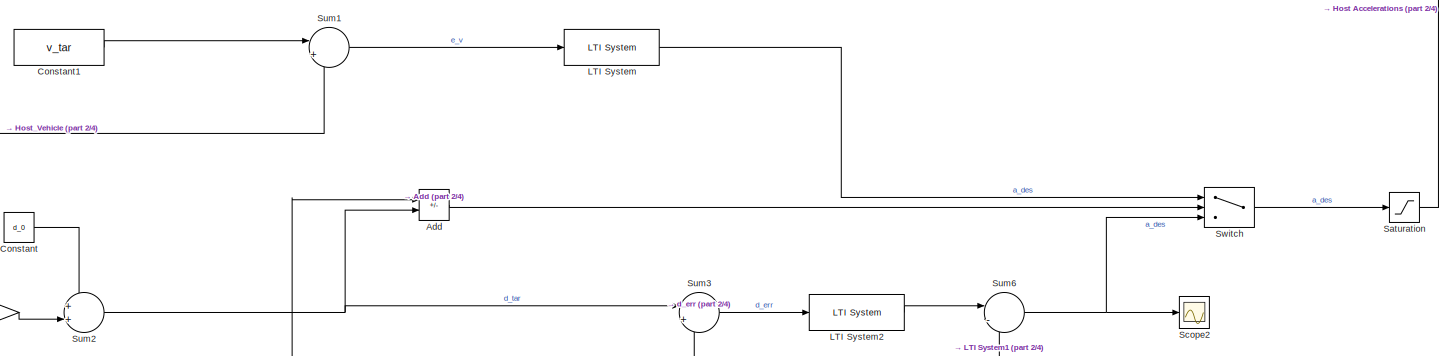
[diagram: root canvas - part 1/4, top center region]
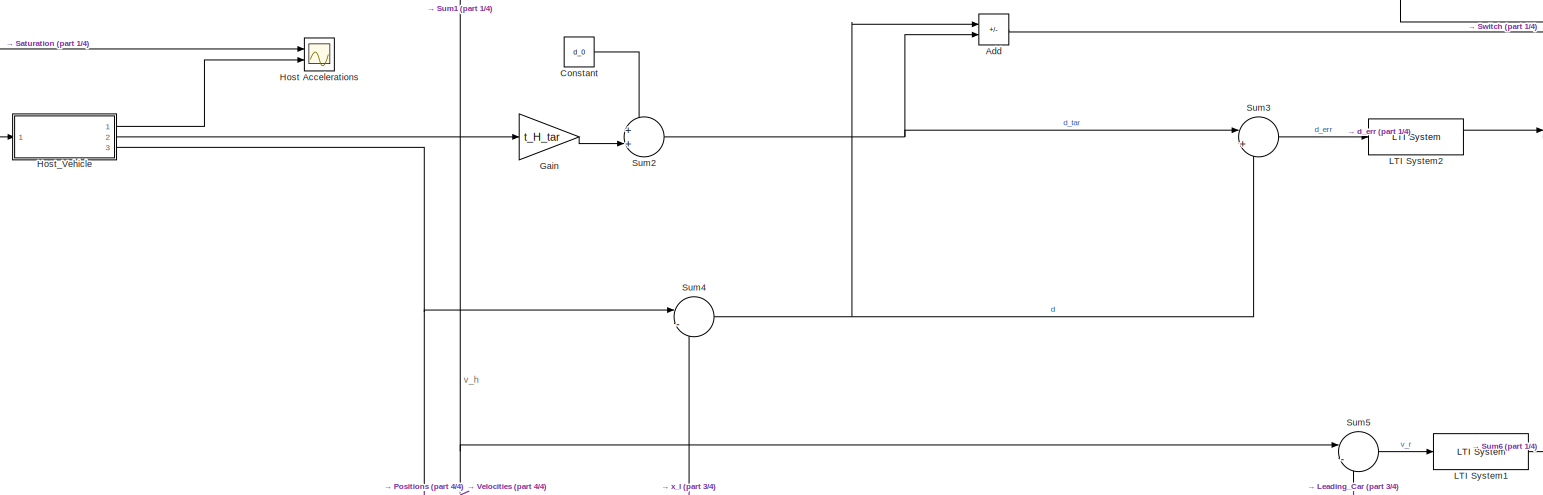
[diagram: root canvas - part 2/4, central region]
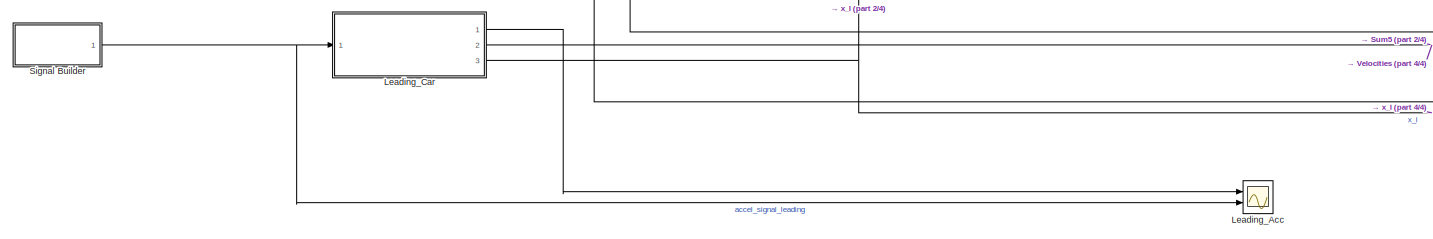
[diagram: root canvas - part 3/4, bottom left region]
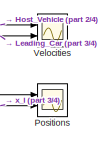
[diagram: root canvas - part 4/4, bottom right region]
MODEL slx_c0095744a17e
KIND model
CONFIG AbsTol = auto
CONFIG EnableMultiTasking = off
CONFIG FixedStep = auto
CONFIG MaxStep = auto
CONFIG MinStep = auto
CONFIG RelTol = 1e-12
CONFIG SampleTimeConstraint = Unconstrained
CONFIG Solver = VariableStepAuto
CONFIG SolverName = VariableStepAuto
CONFIG StartTime = 0.0
CONFIG StopTime = 70
WORKSPACE source: MAT-file member
WORKSPACE d_tar = 20
BLOCK [Sum] Add
  IconShape = rectangular
  Inputs = +-
  Ports = [2, 1]
BLOCK [Constant] Constant
  Value = d_0
BLOCK [Constant] Constant1
  Value = v_tar
BLOCK [Gain] Gain
  Gain = t_H_tar
BLOCK [Scope] Host Accelerations
  Floating = off
  NumInputPorts = 2
  Ports = [2]
  ScopeSpecificationString = Simulink.scopes.TimeScopeBlockCfg('CurrentConfiguration', extmgr.ConfigurationSet(extmgr.Configuration('Core','General UI',true),extmgr.Configuration('Core','Source UI',true),extmgr.Configuration('Sources','WiredSimulink',true,'DataLoggingVariableName','ScopeData8'),extmgr.Configuration('Visuals','Time Domain',true,'SerializedDisplays',{struct('MinYLimReal','-15.59139','MaxYLimReal','-7.22218','YL...<+1370ch>
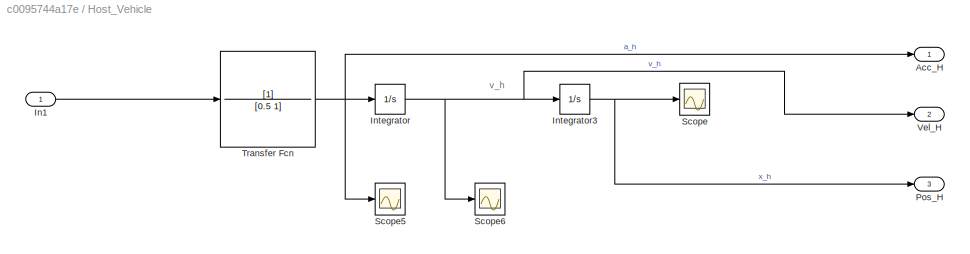
BLOCK [SubSystem] Host_Vehicle
  Ports = [1, 3]
  RequestExecContextInheritance = off
BLOCK [Outport] Host_Vehicle/Acc_H
BLOCK [Inport] Host_Vehicle/In1
BLOCK [Integrator] Host_Vehicle/Integrator
  InitialCondition = v_H0
  Ports = [1, 1]
BLOCK [Integrator] Host_Vehicle/Integrator3
  InitialCondition = x_H0
  Ports = [1, 1]
BLOCK [Outport] Host_Vehicle/Pos_H
  Port = 3
BLOCK [Scope] Host_Vehicle/Scope
  Floating = off
  NumInputPorts = 1
  Ports = [1]
  ScopeSpecificationString = Simulink.scopes.TimeScopeBlockCfg('CurrentConfiguration', extmgr.ConfigurationSet(extmgr.Configuration('Core','General UI',true),extmgr.Configuration('Core','Source UI',true),extmgr.Configuration('Sources','WiredSimulink',true,'DataLoggingVariableName','ScopeData5'),extmgr.Configuration('Visuals','Time Domain',true,'SerializedDisplays',{struct('MinYLimReal','-157.07716','MaxYLimReal','1413.69447',...<+1409ch>
BLOCK [Scope] Host_Vehicle/Scope5
  Floating = off
  NumInputPorts = 1
  Ports = [1]
  ScopeSpecificationString = Simulink.scopes.TimeScopeBlockCfg('CurrentConfiguration', extmgr.ConfigurationSet(extmgr.Configuration('Core','General UI',true),extmgr.Configuration('Core','Source UI',true),extmgr.Configuration('Sources','WiredSimulink',true,'DataLoggingVariableName','ScopeData6'),extmgr.Configuration('Visuals','Time Domain',true,'SerializedDisplays',{struct('MinYLimReal','-10.61142','MaxYLimReal','7.4538','YLab...<+1408ch>
BLOCK [Scope] Host_Vehicle/Scope6
  Floating = off
  NumInputPorts = 1
  Ports = [1]
  ScopeSpecificationString = Simulink.scopes.TimeScopeBlockCfg('CurrentConfiguration', extmgr.ConfigurationSet(extmgr.Configuration('Core','General UI',true),extmgr.Configuration('Core','Source UI',true),extmgr.Configuration('Sources','WiredSimulink',true,'DataLoggingVariableName','ScopeData7'),extmgr.Configuration('Visuals','Time Domain',true,'SerializedDisplays',{struct('MinYLimReal','19.10508','MaxYLimReal','37.87721','YLa...<+1416ch>
BLOCK [TransferFcn] Host_Vehicle/Transfer Fcn
  Denominator = [0.5 1]
BLOCK [Outport] Host_Vehicle/Vel_H
  Port = 2
BLOCK [Reference] LTI System  REF=cstblocks/LTI System
  Ports = [1, 1]
  SourceBlock = cstblocks/LTI System
  SourceProductBaseCode = CT
  SourceType = LTI Block
BLOCK [Reference] LTI System1  REF=cstblocks/LTI System
  Ports = [1, 1]
  SourceBlock = cstblocks/LTI System
  SourceProductBaseCode = CT
  SourceType = LTI Block
BLOCK [Reference] LTI System2  REF=cstblocks/LTI System
  Ports = [1, 1]
  SourceBlock = cstblocks/LTI System
  SourceProductBaseCode = CT
  SourceType = LTI Block
BLOCK [Scope] Leading_Acc
  Floating = off
  NumInputPorts = 2
  Ports = [2]
  ScopeSpecificationString = Simulink.scopes.TimeScopeBlockCfg('CurrentConfiguration', extmgr.ConfigurationSet(extmgr.Configuration('Core','General UI',true),extmgr.Configuration('Core','Source UI',true),extmgr.Configuration('Sources','WiredSimulink',true,'DataLoggingVariableName','ScopeData2'),extmgr.Configuration('Visuals','Time Domain',true,'SerializedDisplays',{struct('MinYLimReal','-70.96946','MaxYLimReal','33.2016','YLa...<+1478ch>
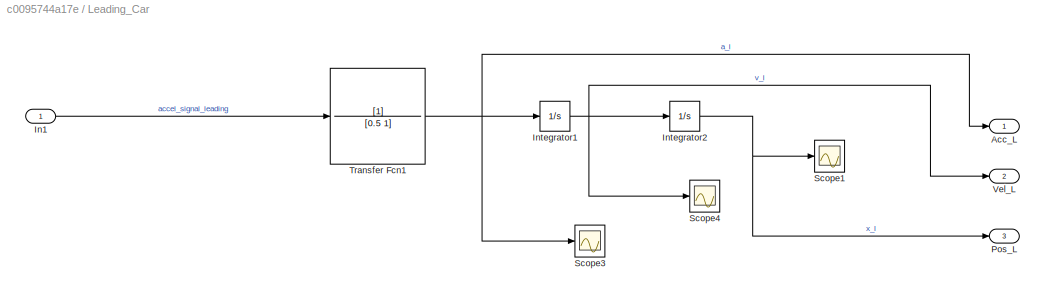
BLOCK [SubSystem] Leading_Car
  Ports = [1, 3]
  RequestExecContextInheritance = off
BLOCK [Outport] Leading_Car/Acc_L
BLOCK [Inport] Leading_Car/In1
BLOCK [Integrator] Leading_Car/Integrator1
  InitialCondition = v_L0
  Ports = [1, 1]
BLOCK [Integrator] Leading_Car/Integrator2
  InitialCondition = x_L0
  Ports = [1, 1]
BLOCK [Outport] Leading_Car/Pos_L
  Port = 3
BLOCK [Scope] Leading_Car/Scope1
  Floating = off
  NumInputPorts = 1
  Ports = [1]
  ScopeSpecificationString = Simulink.scopes.TimeScopeBlockCfg('CurrentConfiguration', extmgr.ConfigurationSet(extmgr.Configuration('Core','General UI',true),extmgr.Configuration('Core','Source UI',true),extmgr.Configuration('Sources','WiredSimulink',true,'DataLoggingVariableName','ScopeData1'),extmgr.Configuration('Visuals','Time Domain',true,'SerializedDisplays',{struct('MinYLimReal','-238.75','MaxYLimReal','2648.75','YLabe...<+1410ch>
BLOCK [Scope] Leading_Car/Scope3
  Floating = off
  NumInputPorts = 1
  Ports = [1]
  ScopeSpecificationString = Simulink.scopes.TimeScopeBlockCfg('CurrentConfiguration', extmgr.ConfigurationSet(extmgr.Configuration('Core','General UI',true),extmgr.Configuration('Core','Source UI',true),extmgr.Configuration('Sources','WiredSimulink',true,'DataLoggingVariableName','ScopeData3'),extmgr.Configuration('Visuals','Time Domain',true,'SerializedDisplays',{struct('MinYLimReal','-2.49768','MaxYLimReal','2.49763','YLab...<+1410ch>
BLOCK [Scope] Leading_Car/Scope4
  Floating = off
  NumInputPorts = 1
  Ports = [1]
  ScopeSpecificationString = Simulink.scopes.TimeScopeBlockCfg('CurrentConfiguration', extmgr.ConfigurationSet(extmgr.Configuration('Core','General UI',true),extmgr.Configuration('Core','Source UI',true),extmgr.Configuration('Sources','WiredSimulink',true,'DataLoggingVariableName','ScopeData4'),extmgr.Configuration('Visuals','Time Domain',true,'SerializedDisplays',{struct('MinYLimReal','28.125','MaxYLimReal','36.875','YLabelR...<+1400ch>
BLOCK [TransferFcn] Leading_Car/Transfer Fcn1
  Denominator = [0.5 1]
BLOCK [Outport] Leading_Car/Vel_L
  Port = 2
BLOCK [Scope] Positions
  Floating = off
  NumInputPorts = 2
  Ports = [2]
  ScopeSpecificationString = Simulink.scopes.TimeScopeBlockCfg('CurrentConfiguration', extmgr.ConfigurationSet(extmgr.Configuration('Core','General UI',true),extmgr.Configuration('Core','Source UI',true),extmgr.Configuration('Sources','WiredSimulink',true,'DataLoggingVariableName','ScopeData8'),extmgr.Configuration('Visuals','Time Domain',true,'SerializedDisplays',{struct('MinYLimReal','-295.00000','MaxYLimReal','2655.00000',...<+1476ch>
BLOCK [Saturate] Saturation
  LowerLimit = -3
  UpperLimit = 5
BLOCK [Scope] Scope2
  Floating = off
  NumInputPorts = 1
  Ports = [1]
  ScopeSpecificationString = Simulink.scopes.TimeScopeBlockCfg('CurrentConfiguration', extmgr.ConfigurationSet(extmgr.Configuration('Core','General UI',true),extmgr.Configuration('Core','Source UI',true),extmgr.Configuration('Sources','WiredSimulink',true,'DataLoggingVariableName','ScopeData1'),extmgr.Configuration('Visuals','Time Domain',true,'SerializedDisplays',{struct('MinYLimReal','-4.34698','MaxYLimReal','7.52844','YLab...<+1364ch>
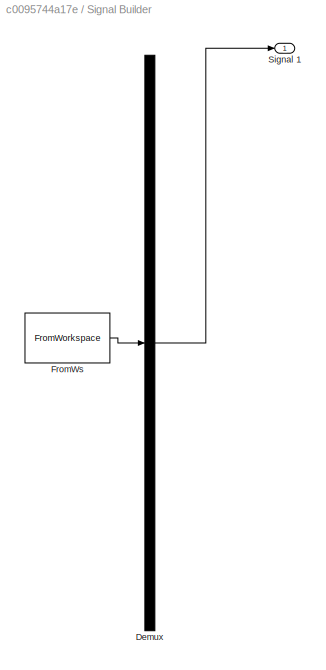
BLOCK [SubSystem] Signal Builder
  ClipboardFcn = sigbuilder_block('clipboard');
  CloseFcn = sigbuilder_block('close');
  ContinueFcn = sigbuilder_block('continue');
  CopyFcn = sigbuilder_block('copy');
  DeleteFcn = sigbuilder_block('delete');
  LoadFcn = sigbuilder_block('load');
  MaskHideContents = on
  ModelCloseFcn = sigbuilder_block('modelClose');
  NameChangeFcn = sigbuilder_block('namechange');
  OpenFcn = sigbuilder_block('open',[303 126.6 843.6 459.6 ]);
  PauseFcn = sigbuilder_block('pause');
  Ports = [0, 1]
  PreSaveFcn = sigbuilder_block('preSave');
  RequestExecContextInheritance = off
  StartFcn = sigbuilder_block('start');
  StopFcn = sigbuilder_block('stop');
  Tag = STV Subsys
BLOCK [Demux] Signal Builder/Demux
  DisplayOption = none
  Outputs = 1
  Ports = [1, 1]
  Tag = STV Demux
BLOCK [FromWorkspace] Signal Builder/FromWs
  Tag = STV FromWs
  VariableName = tuvar
BLOCK [Outport] Signal Builder/Signal 1
  Tag = STV Outport
BLOCK [Sum] Sum1
  Inputs = |+-
  Ports = [2, 1]
BLOCK [Sum] Sum2
  Inputs = ++|
  Ports = [2, 1]
BLOCK [Sum] Sum3
  Inputs = |+-
  Ports = [2, 1]
BLOCK [Sum] Sum4
  Inputs = |-+
  Ports = [2, 1]
BLOCK [Sum] Sum5
  Inputs = |-+
  Ports = [2, 1]
BLOCK [Sum] Sum6
  Inputs = |-+
  Ports = [2, 1]
BLOCK [Switch] Switch
  InputSameDT = off
  SaturateOnIntegerOverflow = off
BLOCK [Scope] Velocities
  Floating = off
  NumInputPorts = 2
  Ports = [2]
  ScopeSpecificationString = Simulink.scopes.TimeScopeBlockCfg('CurrentConfiguration', extmgr.ConfigurationSet(extmgr.Configuration('Core','General UI',true),extmgr.Configuration('Core','Source UI',true),extmgr.Configuration('Sources','WiredSimulink',true,'DataLoggingVariableName','ScopeData9'),extmgr.Configuration('Visuals','Time Domain',true,'SerializedDisplays',{struct('MinYLimReal','26.65988','MaxYLimReal','37.03779','YLa...<+1473ch>
ANNOTATION (root): v_h
ANNOTATION Host_Vehicle: v_h
LINE Add:1 -> Switch:2
LINE Constant1:1 -> Sum1:1
LINE Constant:1 -> Sum2:1
LINE Gain:1 -> Sum2:2
LINE Host_Vehicle/In1:1 -> Host_Vehicle/Transfer Fcn:1
NET Host_Vehicle/Integrator3:1 -> Host_Vehicle/Pos_H:1, Host_Vehicle/Scope:1
NET Host_Vehicle/Integrator:1 -> Host_Vehicle/Integrator3:1, Host_Vehicle/Scope6:1, Host_Vehicle/Vel_H:1
NET Host_Vehicle/Transfer Fcn:1 -> Host_Vehicle/Acc_H:1, Host_Vehicle/Integrator:1, Host_Vehicle/Scope5:1
LINE Host_Vehicle:1 -> Host Accelerations:2
NET Host_Vehicle:2 -> Gain:1, Sum1:2, Sum5:1, Velocities:1
NET Host_Vehicle:3 -> Positions:1, Sum4:1
LINE LTI System1:1 -> Sum6:2
LINE LTI System2:1 -> Sum6:1
LINE LTI System:1 -> Switch:1
LINE Leading_Car/In1:1 -> Leading_Car/Transfer Fcn1:1
NET Leading_Car/Integrator1:1 -> Leading_Car/Integrator2:1, Leading_Car/Scope4:1, Leading_Car/Vel_L:1
NET Leading_Car/Integrator2:1 -> Leading_Car/Pos_L:1, Leading_Car/Scope1:1
NET Leading_Car/Transfer Fcn1:1 -> Leading_Car/Acc_L:1, Leading_Car/Integrator1:1, Leading_Car/Scope3:1
LINE Leading_Car:1 -> Leading_Acc:1
NET Leading_Car:2 -> Sum5:2, Velocities:2
NET Leading_Car:3 -> Positions:2, Sum4:2
NET Saturation:1 -> Host Accelerations:1, Host_Vehicle:1
NET Signal Builder:1 -> Leading_Acc:2, Leading_Car:1
LINE Sum1:1 -> LTI System:1
NET Sum2:1 -> Add:2, Sum3:1
LINE Sum3:1 -> LTI System2:1
NET Sum4:1 -> Add:1, Sum3:2
LINE Sum5:1 -> LTI System1:1
NET Sum6:1 -> Scope2:1, Switch:3
LINE Switch:1 -> Saturation:1
note: NET lines group one-source signal fan-out (src -> all destinations, sorted); 1:1 wires keep LINE
